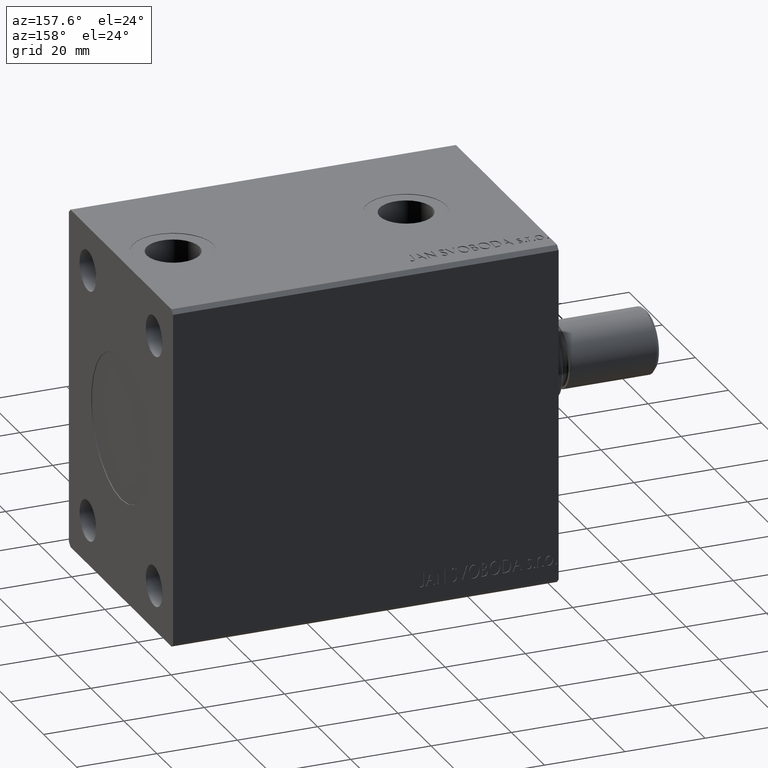
[diagram: clean part render]
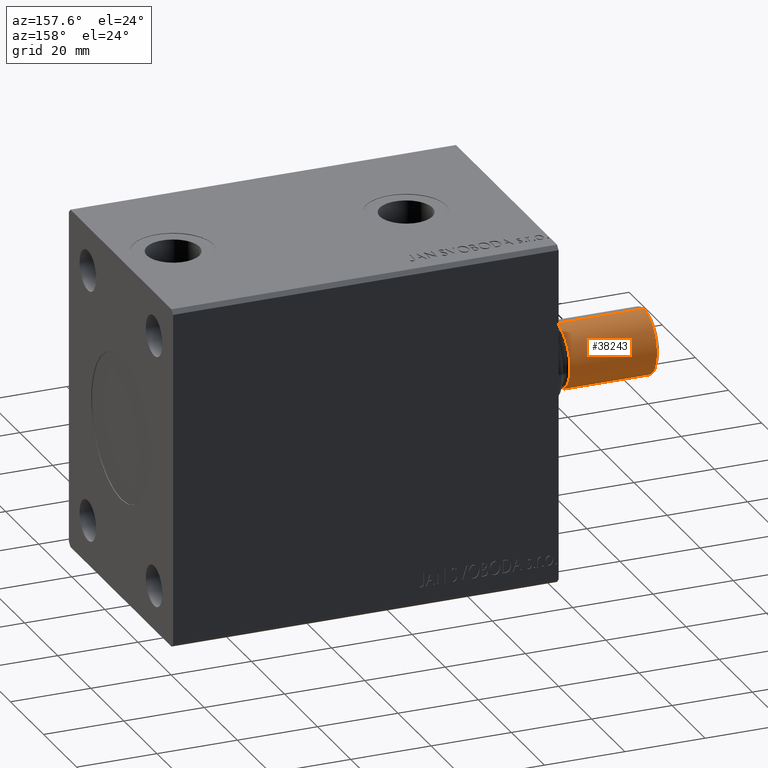
[diagram: same view with one face highlighted and labeled with its STEP entity id]
A machine part, auxiliary view. The second image highlights one B-rep face of the part: STEP entity #38243.
In plain terms, the highlighted cylindrical surface (edge-blend (fillet) strip) has radius 8 mm, axis along (-1, 0, 0).
Its self-contained STEP definition (entity closure, byte-faithful):
#1822 = ORIENTED_EDGE ( 'NONE', *, *, #31760, .T. ) ;
#2931 = CARTESIAN_POINT ( 'NONE',  ( -8.000000000000000000, 0.000000000000000000, 0.8000000000000055955 ) ) ;
#3293 = AXIS2_PLACEMENT_3D ( 'NONE', #42009, #35284, #42455 ) ;
#4488 = DIRECTION ( 'NONE',  ( 1.000000000000000000, 0.000000000000000000, 0.000000000000000000 ) ) ;
#5371 = CARTESIAN_POINT ( 'NONE',  ( 0.000000000000000000, 0.000000000000000000, 22.50000000000000000 ) ) ;
#6264 = AXIS2_PLACEMENT_3D ( 'NONE', #25215, #11483, #4488 ) ;
#8384 = DIRECTION ( 'NONE',  ( -0.000000000000000000, -0.000000000000000000, -1.000000000000000000 ) ) ;
#9420 = DIRECTION ( 'NONE',  ( -1.000000000000000000, 0.000000000000000000, 0.000000000000000000 ) ) ;
#9721 = VERTEX_POINT ( 'NONE', #32377 ) ;
#9908 = VECTOR ( 'NONE', #8384, 1000.000000000000000 ) ;
#11059 = CARTESIAN_POINT ( 'NONE',  ( 8.000000000000000000, 9.797174393178823685E-16, 22.50000000000000000 ) ) ;
#11483 = DIRECTION ( 'NONE',  ( 0.000000000000000000, 0.000000000000000000, 1.000000000000000000 ) ) ;
#14433 = LINE ( 'NONE', #11059, #30035 ) ;
#16170 = CYLINDRICAL_SURFACE ( 'NONE', #35044, 8.000000000000000000 ) ;
#16970 = CIRCLE ( 'NONE', #3293, 8.000000000000000000 ) ;
#17858 = ORIENTED_EDGE ( 'NONE', *, *, #38129, .F. ) ;
#21832 = VERTEX_POINT ( 'NONE', #36067 ) ;
#25215 = CARTESIAN_POINT ( 'NONE',  ( 0.000000000000000000, 0.000000000000000000, 22.50000000000000000 ) ) ;
#26532 = FACE_OUTER_BOUND ( 'NONE', #41482, .T. ) ;
#26743 = CARTESIAN_POINT ( 'NONE',  ( 8.000000000000000000, 9.797174393178823685E-16, 22.50000000000000000 ) ) ;
#27632 = EDGE_CURVE ( 'NONE', #9721, #29048, #16970, .T. ) ;
#28330 = VERTEX_POINT ( 'NONE', #26743 ) ;
#29048 = VERTEX_POINT ( 'NONE', #2931 ) ;
#30035 = VECTOR ( 'NONE', #38742, 1000.000000000000000 ) ;
#31760 = EDGE_CURVE ( 'NONE', #28330, #9721, #14433, .T. ) ;
#32166 = CIRCLE ( 'NONE', #6264, 8.000000000000000000 ) ;
#32377 = CARTESIAN_POINT ( 'NONE',  ( 8.000000000000000000, 9.797174393178823685E-16, 0.8000000000000055955 ) ) ;
#32686 = ORIENTED_EDGE ( 'NONE', *, *, #27632, .T. ) ;
#35044 = AXIS2_PLACEMENT_3D ( 'NONE', #5371, #40250, #9420 ) ;
#35284 = DIRECTION ( 'NONE',  ( -0.000000000000000000, -0.000000000000000000, 1.000000000000000000 ) ) ;
#36067 = CARTESIAN_POINT ( 'NONE',  ( -8.000000000000000000, 0.000000000000000000, 22.50000000000000000 ) ) ;
#37062 = ORIENTED_EDGE ( 'NONE', *, *, #40020, .F. ) ;
#38129 = EDGE_CURVE ( 'NONE', #28330, #21832, #32166, .T. ) ;
#38243 = ADVANCED_FACE ( 'NONE', ( #26532 ), #16170, .T. ) ;
#38742 = DIRECTION ( 'NONE',  ( -0.000000000000000000, -0.000000000000000000, -1.000000000000000000 ) ) ;
#40020 = EDGE_CURVE ( 'NONE', #21832, #29048, #40100, .T. ) ;
#40100 = LINE ( 'NONE', #43249, #9908 ) ;
#40250 = DIRECTION ( 'NONE',  ( -0.000000000000000000, -0.000000000000000000, -1.000000000000000000 ) ) ;
#41482 = EDGE_LOOP ( 'NONE', ( #17858, #1822, #32686, #37062 ) ) ;
#42009 = CARTESIAN_POINT ( 'NONE',  ( 0.000000000000000000, 0.000000000000000000, 0.8000000000000055955 ) ) ;
#42455 = DIRECTION ( 'NONE',  ( 1.000000000000000000, 0.000000000000000000, 0.000000000000000000 ) ) ;
#43249 = CARTESIAN_POINT ( 'NONE',  ( -8.000000000000000000, 0.000000000000000000, 22.50000000000000000 ) ) ;